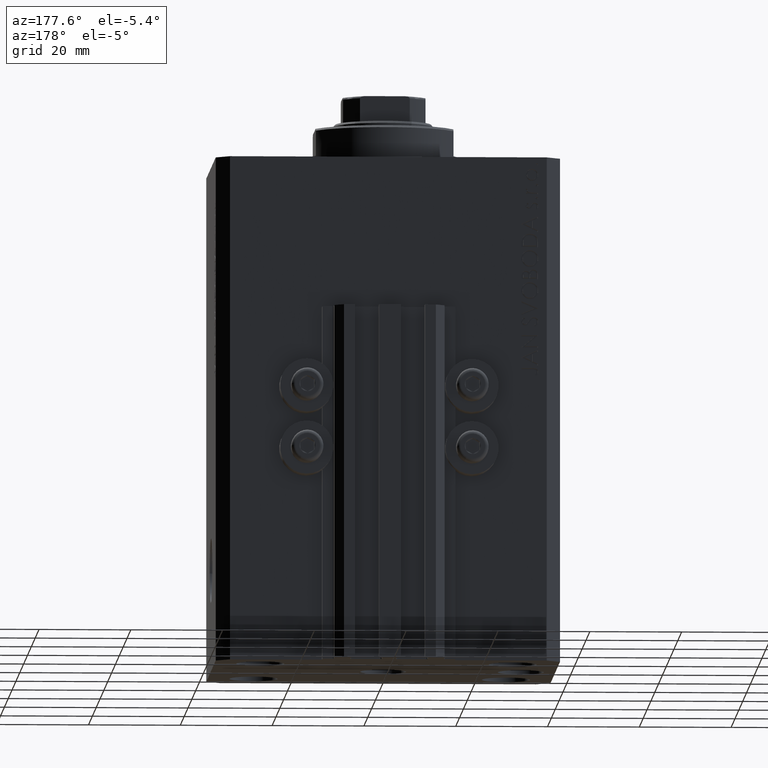
[diagram: clean part render]
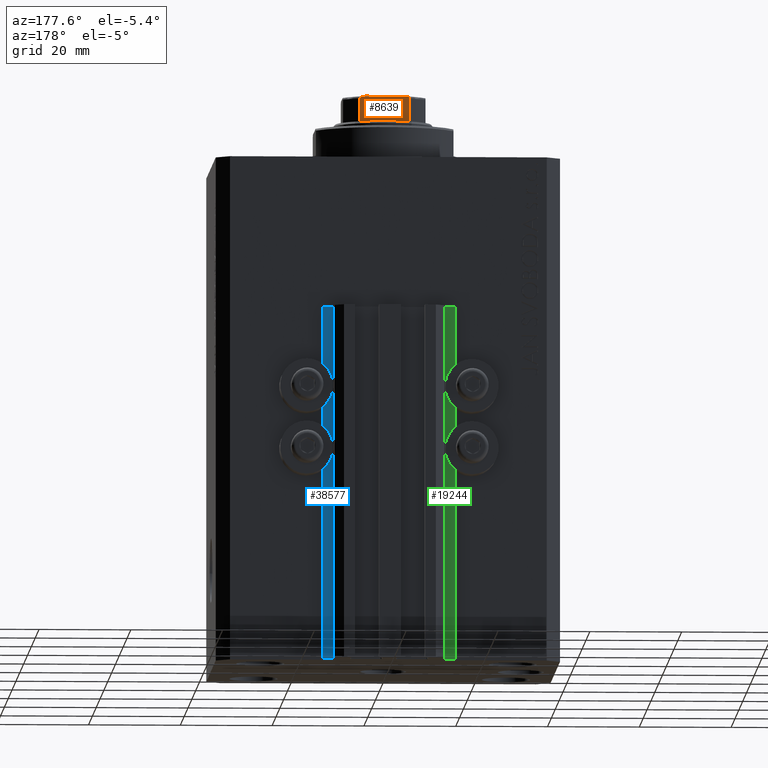
[diagram: same view with three faces highlighted in distinct colors, each labeled with its STEP entity id]
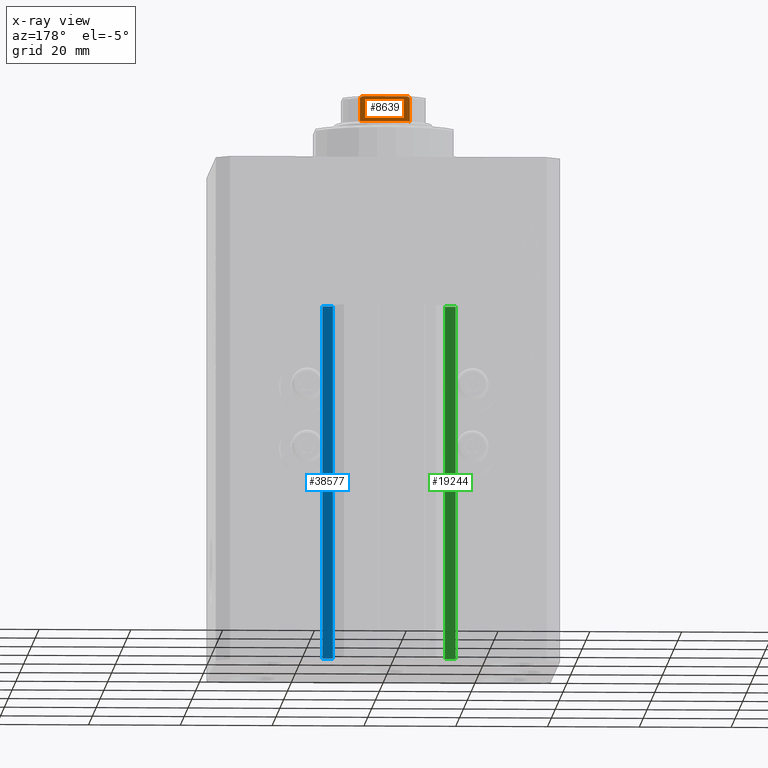
[diagram: x-ray of the same camera — body ghosted, the three highlighted faces saturated]
A machine part, auxiliary view with three faces highlighted in distinct colors.
The next image is the same camera in x-ray (body ghosted, the three faces saturated) — at least one of them is partly hidden behind the body in this view.
Their STEP definitions:

[orange] entity #8639 — the highlighted planar face has unit normal (0, -1, 0).
#203 = CARTESIAN_POINT ( 'NONE',  ( -5.408326913195988794, 8.999999999999998224, 114.5999999999999801 ) ) ;
#1410 = ORIENTED_EDGE ( 'NONE', *, *, #19995, .F. ) ;
#2150 = CARTESIAN_POINT ( 'NONE',  ( -4.778533838065913919, 8.999999999999996447, 115.0778291476469519 ) ) ;
#2194 = B_SPLINE_CURVE_WITH_KNOTS ( 'NONE', 3,
 ( #22546, #41168, #30182, #18485, #23025, #26129, #22314, #15596, #11526, #11286 ),
 .UNSPECIFIED., .F., .F.,
 ( 4, 2, 2, 2, 4 ),
 ( 8.673617379884035472E-19, 0.0006221106941441160391, 0.0009331660412161747091, 0.001088693714752204207, 0.001244221388288233596 ),
 .UNSPECIFIED. ) ;
#2956 = DIRECTION ( 'NONE',  ( -0.000000000000000000, -0.000000000000000000, 1.000000000000000000 ) ) ;
#4124 = VECTOR ( 'NONE', #32761, 1000.000000000000000 ) ;
#4491 = DIRECTION ( 'NONE',  ( -1.000000000000000000, -0.000000000000000000, -0.000000000000000000 ) ) ;
#4976 = CARTESIAN_POINT ( 'NONE',  ( -5.408326913195986130, 8.999999999999998224, 109.5999999999999943 ) ) ;
#4992 = FACE_OUTER_BOUND ( 'NONE', #10265, .T. ) ;
#5324 = VERTEX_POINT ( 'NONE', #4976 ) ;
#6851 = VERTEX_POINT ( 'NONE', #25663 ) ;
#7355 = EDGE_CURVE ( 'NONE', #33335, #6851, #2194, .T. ) ;
#7767 = VERTEX_POINT ( 'NONE', #203 ) ;
#8639 = ADVANCED_FACE ( 'NONE', ( #4992 ), #12420, .F. ) ;
#9494 = VERTEX_POINT ( 'NONE', #26845 ) ;
#10265 = EDGE_LOOP ( 'NONE', ( #1410, #39909, #18061, #17264, #40849, #24354 ) ) ;
#11286 = CARTESIAN_POINT ( 'NONE',  ( 5.408326913195989682, 8.999999999999998224, 114.5999999999999801 ) ) ;
#11412 = EDGE_CURVE ( 'NONE', #9494, #6851, #19402, .T. ) ;
#11526 = CARTESIAN_POINT ( 'NONE',  ( 5.408326913195987906, 9.000000000000000000, 114.6537434673188471 ) ) ;
#12171 = EDGE_CURVE ( 'NONE', #5324, #7767, #27635, .T. ) ;
#12420 = PLANE ( 'NONE',  #23247 ) ;
#13035 = CARTESIAN_POINT ( 'NONE',  ( -5.408326913195988794, 8.999999999999998224, -0.001000000000001000089 ) ) ;
#13126 = DIRECTION ( 'NONE',  ( 0.000000000000000000, -1.000000000000000000, 0.000000000000000000 ) ) ;
#13748 = CARTESIAN_POINT ( 'NONE',  ( 4.358898943540677529, 8.999999999999998224, 115.1000000000000085 ) ) ;
#15334 = DIRECTION ( 'NONE',  ( -0.000000000000000000, -0.000000000000000000, 1.000000000000000000 ) ) ;
#15596 = CARTESIAN_POINT ( 'NONE',  ( 5.390945448132530515, 8.999999999999996447, 114.7054816538970385 ) ) ;
#17264 = ORIENTED_EDGE ( 'NONE', *, *, #18114, .T. ) ;
#17946 = VECTOR ( 'NONE', #4491, 1000.000000000000000 ) ;
#18061 = ORIENTED_EDGE ( 'NONE', *, *, #11412, .F. ) ;
#18114 = EDGE_CURVE ( 'NONE', #9494, #5324, #25599, .T. ) ;
#18485 = CARTESIAN_POINT ( 'NONE',  ( 5.074490744525495423, 8.999999999999998224, 114.9787200784332413 ) ) ;
#19402 = LINE ( 'NONE', #44758, #44045 ) ;
#19995 = EDGE_CURVE ( 'NONE', #33335, #33502, #26290, .T. ) ;
#20132 = CARTESIAN_POINT ( 'NONE',  ( -5.077896145217225765, 8.999999999999998224, 114.9773016776067038 ) ) ;
#22314 = CARTESIAN_POINT ( 'NONE',  ( 5.335288102212765615, 8.999999999999998224, 114.7956905402762118 ) ) ;
#22546 = CARTESIAN_POINT ( 'NONE',  ( 4.358898943540677529, 8.999999999999998224, 115.1000000000000085 ) ) ;
#22669 = EDGE_CURVE ( 'NONE', #7767, #33502, #38983, .T. ) ;
#23025 = CARTESIAN_POINT ( 'NONE',  ( 5.173732970196589953, 9.000000000000000000, 114.9331808643798780 ) ) ;
#23247 = AXIS2_PLACEMENT_3D ( 'NONE', #45901, #13126, #41357 ) ;
#24354 = ORIENTED_EDGE ( 'NONE', *, *, #22669, .T. ) ;
#25599 = LINE ( 'NONE', #28474, #4124 ) ;
#25663 = CARTESIAN_POINT ( 'NONE',  ( 5.408326913195989682, 8.999999999999998224, 114.5999999999999801 ) ) ;
#26129 = CARTESIAN_POINT ( 'NONE',  ( 5.297634495023415546, 9.000000000000000000, 114.8344228052780238 ) ) ;
#26290 = LINE ( 'NONE', #40869, #17946 ) ;
#26845 = CARTESIAN_POINT ( 'NONE',  ( 5.408326913195989682, 8.999999999999998224, 109.5999999999999943 ) ) ;
#27635 = LINE ( 'NONE', #13035, #36409 ) ;
#27772 = CARTESIAN_POINT ( 'NONE',  ( -5.390954572107317766, 8.999999999999996447, 114.7053628521400128 ) ) ;
#28474 = CARTESIAN_POINT ( 'NONE',  ( -9.000000000000000000, 8.999999999999998224, 109.6000000000000085 ) ) ;
#28659 = CARTESIAN_POINT ( 'NONE',  ( -4.358898943540678417, 8.999999999999998224, 115.1000000000000085 ) ) ;
#28899 = CARTESIAN_POINT ( 'NONE',  ( -5.174818616237111257, 9.000000000000000000, 114.9325218846533119 ) ) ;
#30182 = CARTESIAN_POINT ( 'NONE',  ( 4.775913644518309908, 8.999999999999998224, 115.0781460743083500 ) ) ;
#31354 = CARTESIAN_POINT ( 'NONE',  ( -5.408326913195988794, 8.999999999999998224, 114.5999999999999801 ) ) ;
#32761 = DIRECTION ( 'NONE',  ( -1.000000000000000000, -0.000000000000000000, -0.000000000000000000 ) ) ;
#33335 = VERTEX_POINT ( 'NONE', #13748 ) ;
#33349 = CARTESIAN_POINT ( 'NONE',  ( -4.358898943540678417, 8.999999999999998224, 115.1000000000000085 ) ) ;
#33502 = VERTEX_POINT ( 'NONE', #33349 ) ;
#35187 = CARTESIAN_POINT ( 'NONE',  ( -4.569278586016984001, 8.999999999999996447, 115.0999999999999801 ) ) ;
#36409 = VECTOR ( 'NONE', #2956, 1000.000000000000000 ) ;
#38983 = B_SPLINE_CURVE_WITH_KNOTS ( 'NONE', 3,
 ( #31354, #45484, #27772, #45715, #43478, #28899, #20132, #2150, #35187, #28659 ),
 .UNSPECIFIED., .F., .F.,
 ( 4, 2, 2, 2, 4 ),
 ( 2.823925224926892107E-17, 0.0001582447020888488214, 0.0003164894041776693994, 0.0006329788083552842634, 0.001265957616710501089 ),
 .UNSPECIFIED. ) ;
#39909 = ORIENTED_EDGE ( 'NONE', *, *, #7355, .T. ) ;
#40849 = ORIENTED_EDGE ( 'NONE', *, *, #12171, .T. ) ;
#40869 = CARTESIAN_POINT ( 'NONE',  ( -9.000000000000000000, 8.999999999999998224, 115.1000000000000085 ) ) ;
#41168 = CARTESIAN_POINT ( 'NONE',  ( 4.569272810556672226, 8.999999999999998224, 115.0999999999999943 ) ) ;
#41357 = DIRECTION ( 'NONE',  ( 0.000000000000000000, -0.000000000000000000, -1.000000000000000000 ) ) ;
#43478 = CARTESIAN_POINT ( 'NONE',  ( -5.298186678102076108, 8.999999999999998224, 114.8338781215004616 ) ) ;
#44045 = VECTOR ( 'NONE', #15334, 1000.000000000000000 ) ;
#44758 = CARTESIAN_POINT ( 'NONE',  ( 5.408326913195989682, 8.999999999999998224, -0.001000000000001000089 ) ) ;
#45484 = CARTESIAN_POINT ( 'NONE',  ( -5.408326913195990571, 9.000000000000001776, 114.6535720727335388 ) ) ;
#45715 = CARTESIAN_POINT ( 'NONE',  ( -5.335664150027714214, 9.000000000000000000, 114.7951843380013059 ) ) ;
#45901 = CARTESIAN_POINT ( 'NONE',  ( -9.000000000000000000, 8.999999999999998224, 115.1000000000000085 ) ) ;

[blue] entity #38577 — the highlighted planar face has unit normal (0, 1, 0).
#1963 = VECTOR ( 'NONE', #14320, 1000.000000000000000 ) ;
#2200 = EDGE_CURVE ( 'NONE', #23678, #23991, #20061, .T. ) ;
#2990 = PLANE ( 'NONE',  #19173 ) ;
#3984 = CARTESIAN_POINT ( 'NONE',  ( 14.49999999999999645, 30.00000000000002487, -110.0000000000000000 ) ) ;
#4473 = CARTESIAN_POINT ( 'NONE',  ( 14.49999999999999645, 30.00000000000002487, -110.0000000000000000 ) ) ;
#4704 = VECTOR ( 'NONE', #41577, 1000.000000000000000 ) ;
#6686 = VECTOR ( 'NONE', #43075, 1000.000000000000000 ) ;
#6946 = CARTESIAN_POINT ( 'NONE',  ( 12.20000000000000107, 30.00000000000002487, -110.0000000000000000 ) ) ;
#9274 = EDGE_LOOP ( 'NONE', ( #15323, #44731, #42400, #31328 ) ) ;
#9956 = FACE_OUTER_BOUND ( 'NONE', #9274, .T. ) ;
#10853 = EDGE_CURVE ( 'NONE', #21944, #18040, #40617, .T. ) ;
#12922 = EDGE_CURVE ( 'NONE', #18040, #23991, #14111, .T. ) ;
#13898 = LINE ( 'NONE', #28491, #6686 ) ;
#14111 = LINE ( 'NONE', #24894, #22260 ) ;
#14320 = DIRECTION ( 'NONE',  ( 0.000000000000000000, 0.000000000000000000, 1.000000000000000000 ) ) ;
#15323 = ORIENTED_EDGE ( 'NONE', *, *, #12922, .F. ) ;
#17617 = DIRECTION ( 'NONE',  ( 0.000000000000000000, 1.000000000000000000, -0.000000000000000000 ) ) ;
#18040 = VERTEX_POINT ( 'NONE', #36112 ) ;
#19173 = AXIS2_PLACEMENT_3D ( 'NONE', #28612, #17617, #32201 ) ;
#20061 = LINE ( 'NONE', #41811, #4704 ) ;
#21944 = VERTEX_POINT ( 'NONE', #3984 ) ;
#22260 = VECTOR ( 'NONE', #35174, 1000.000000000000000 ) ;
#23678 = VERTEX_POINT ( 'NONE', #6946 ) ;
#23991 = VERTEX_POINT ( 'NONE', #30842 ) ;
#24894 = CARTESIAN_POINT ( 'NONE',  ( 14.49999999999999645, 30.00000000000002487, -33.00000000000000000 ) ) ;
#28491 = CARTESIAN_POINT ( 'NONE',  ( 14.49999999999999645, 30.00000000000002487, -110.0000000000000000 ) ) ;
#28612 = CARTESIAN_POINT ( 'NONE',  ( 14.49999999999999645, 30.00000000000002487, -110.0000000000000000 ) ) ;
#30422 = EDGE_CURVE ( 'NONE', #21944, #23678, #13898, .T. ) ;
#30842 = CARTESIAN_POINT ( 'NONE',  ( 12.20000000000000107, 30.00000000000002487, -33.00000000000000000 ) ) ;
#31328 = ORIENTED_EDGE ( 'NONE', *, *, #2200, .T. ) ;
#32201 = DIRECTION ( 'NONE',  ( 0.000000000000000000, 0.000000000000000000, 1.000000000000000000 ) ) ;
#35174 = DIRECTION ( 'NONE',  ( -1.000000000000000000, 0.000000000000000000, 0.000000000000000000 ) ) ;
#36112 = CARTESIAN_POINT ( 'NONE',  ( 14.49999999999999645, 30.00000000000002487, -33.00000000000000000 ) ) ;
#38577 = ADVANCED_FACE ( 'NONE', ( #9956 ), #2990, .T. ) ;
#40617 = LINE ( 'NONE', #4473, #1963 ) ;
#41577 = DIRECTION ( 'NONE',  ( 0.000000000000000000, 0.000000000000000000, 1.000000000000000000 ) ) ;
#41811 = CARTESIAN_POINT ( 'NONE',  ( 12.20000000000000107, 30.00000000000002487, -110.0000000000000000 ) ) ;
#42400 = ORIENTED_EDGE ( 'NONE', *, *, #30422, .T. ) ;
#43075 = DIRECTION ( 'NONE',  ( -1.000000000000000000, 0.000000000000000000, 0.000000000000000000 ) ) ;
#44731 = ORIENTED_EDGE ( 'NONE', *, *, #10853, .F. ) ;

[green] entity #19244 — the highlighted planar face has unit normal (0, 1, 0).
#60 = DIRECTION ( 'NONE',  ( 1.508455196501571429E-15, 1.000000000000000000, -0.000000000000000000 ) ) ;
#357 = EDGE_CURVE ( 'NONE', #11145, #36353, #5778, .T. ) ;
#1678 = CARTESIAN_POINT ( 'NONE',  ( -12.20000000000000107, 29.99999999999998934, -110.0000000000000000 ) ) ;
#1768 = VERTEX_POINT ( 'NONE', #46351 ) ;
#2389 = LINE ( 'NONE', #1678, #46278 ) ;
#5733 = VECTOR ( 'NONE', #27525, 1000.000000000000000 ) ;
#5778 = LINE ( 'NONE', #9372, #12797 ) ;
#7267 = DIRECTION ( 'NONE',  ( -1.000000000000000000, 1.508455196501571429E-15, 0.000000000000000000 ) ) ;
#8635 = CARTESIAN_POINT ( 'NONE',  ( -12.20000000000000107, 29.99999999999998934, -110.0000000000000000 ) ) ;
#9006 = DIRECTION ( 'NONE',  ( -1.000000000000000000, 1.508455196501571429E-15, 0.000000000000000000 ) ) ;
#9372 = CARTESIAN_POINT ( 'NONE',  ( -14.50000000000000000, 29.99999999999999289, -110.0000000000000000 ) ) ;
#9698 = CARTESIAN_POINT ( 'NONE',  ( -12.20000000000000107, 29.99999999999998934, -110.0000000000000000 ) ) ;
#9745 = ORIENTED_EDGE ( 'NONE', *, *, #357, .T. ) ;
#11145 = VERTEX_POINT ( 'NONE', #31259 ) ;
#12230 = LINE ( 'NONE', #8635, #5733 ) ;
#12797 = VECTOR ( 'NONE', #19687, 1000.000000000000000 ) ;
#14207 = CARTESIAN_POINT ( 'NONE',  ( -12.20000000000000107, 29.99999999999998934, -110.0000000000000000 ) ) ;
#14924 = FACE_OUTER_BOUND ( 'NONE', #25600, .T. ) ;
#16088 = ORIENTED_EDGE ( 'NONE', *, *, #21356, .T. ) ;
#17897 = DIRECTION ( 'NONE',  ( 0.000000000000000000, 0.000000000000000000, 1.000000000000000000 ) ) ;
#19244 = ADVANCED_FACE ( 'NONE', ( #14924 ), #43873, .T. ) ;
#19687 = DIRECTION ( 'NONE',  ( 0.000000000000000000, 0.000000000000000000, 1.000000000000000000 ) ) ;
#21356 = EDGE_CURVE ( 'NONE', #22023, #11145, #12230, .T. ) ;
#22023 = VERTEX_POINT ( 'NONE', #9698 ) ;
#22657 = EDGE_CURVE ( 'NONE', #22023, #1768, #2389, .T. ) ;
#25600 = EDGE_LOOP ( 'NONE', ( #32237, #28619, #16088, #9745 ) ) ;
#26557 = CARTESIAN_POINT ( 'NONE',  ( -14.50000000000000000, 29.99999999999999289, -33.00000000000000000 ) ) ;
#26962 = CARTESIAN_POINT ( 'NONE',  ( -12.20000000000000107, 29.99999999999998934, -33.00000000000000000 ) ) ;
#27525 = DIRECTION ( 'NONE',  ( -1.000000000000000000, 1.508455196501571429E-15, 0.000000000000000000 ) ) ;
#27833 = AXIS2_PLACEMENT_3D ( 'NONE', #14207, #60, #7267 ) ;
#28619 = ORIENTED_EDGE ( 'NONE', *, *, #22657, .F. ) ;
#31259 = CARTESIAN_POINT ( 'NONE',  ( -14.50000000000000000, 29.99999999999999289, -110.0000000000000000 ) ) ;
#32237 = ORIENTED_EDGE ( 'NONE', *, *, #46503, .F. ) ;
#32259 = VECTOR ( 'NONE', #9006, 1000.000000000000000 ) ;
#36353 = VERTEX_POINT ( 'NONE', #26557 ) ;
#37964 = LINE ( 'NONE', #26962, #32259 ) ;
#43873 = PLANE ( 'NONE',  #27833 ) ;
#46278 = VECTOR ( 'NONE', #17897, 1000.000000000000000 ) ;
#46351 = CARTESIAN_POINT ( 'NONE',  ( -12.20000000000000107, 29.99999999999998934, -33.00000000000000000 ) ) ;
#46503 = EDGE_CURVE ( 'NONE', #1768, #36353, #37964, .T. ) ;